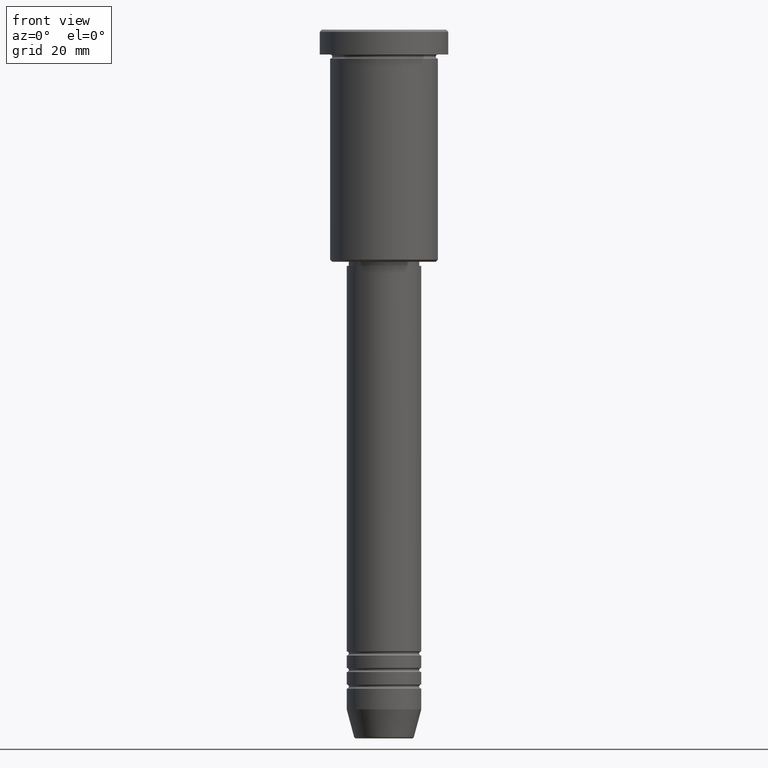
[diagram: clean part render]
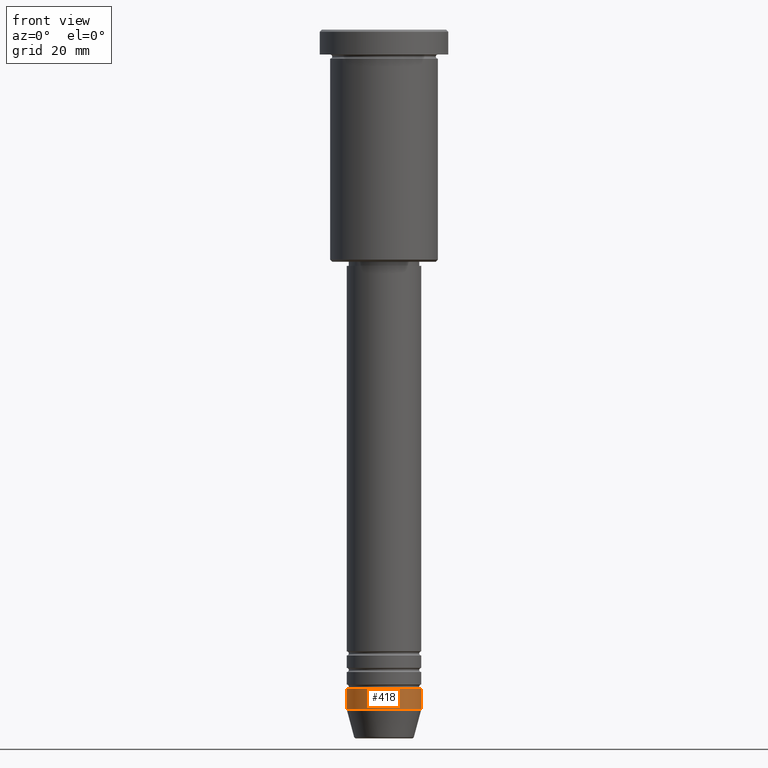
[diagram: same view with one face highlighted and labeled with its STEP entity id]
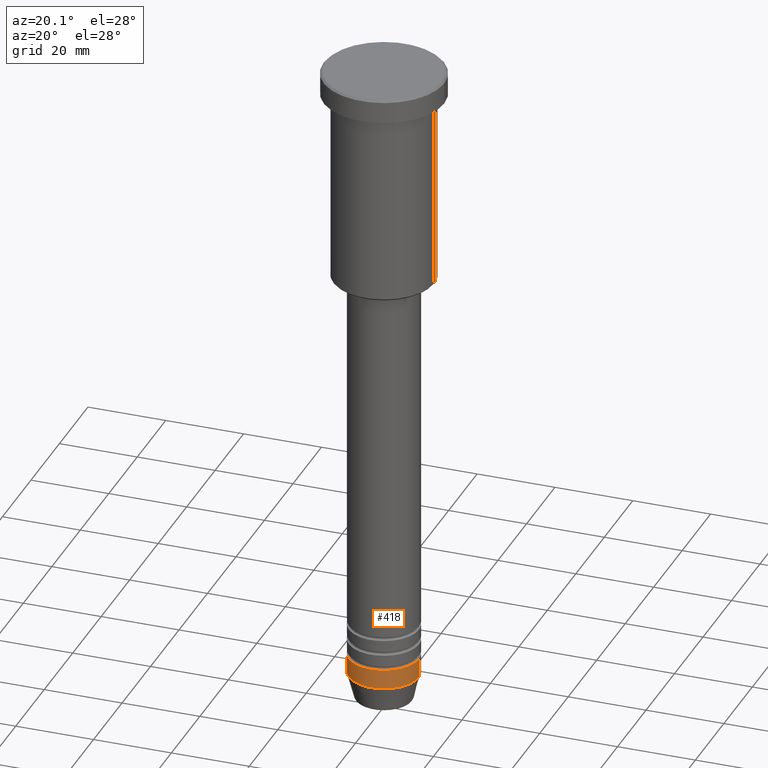
[diagram: same view with one face highlighted and labeled with its STEP entity id]
A machine part, front view. The second image highlights one B-rep face of the part: STEP entity #418.
A second angle (auxiliary view) of the same face is appended — the face is thin or edge-on in the first view.
In plain terms, the highlighted cylindrical surface (partial cylindrical patch) has radius 9 mm, axis along (-0, -0, 1).
Its self-contained STEP definition (entity closure, byte-faithful):
#11 = EDGE_LOOP ( 'NONE', ( #807, #1137, #924, #852 ) ) ;
#31 = DIRECTION ( 'NONE',  ( 1.000000000000000000, 0.000000000000000000, 0.000000000000000000 ) ) ;
#36 = CARTESIAN_POINT ( 'NONE',  ( 9.000000000000000000, 0.000000000000000000, -159.0000000000000000 ) ) ;
#44 = AXIS2_PLACEMENT_3D ( 'NONE', #874, #74, #775 ) ;
#74 = DIRECTION ( 'NONE',  ( -0.000000000000000000, -0.000000000000000000, 1.000000000000000000 ) ) ;
#165 = CARTESIAN_POINT ( 'NONE',  ( 0.000000000000000000, 0.000000000000000000, -164.0000000000000000 ) ) ;
#247 = CARTESIAN_POINT ( 'NONE',  ( -9.000000000000000000, 1.102182119232617714E-15, 0.000000000000000000 ) ) ;
#291 = LINE ( 'NONE', #756, #532 ) ;
#348 = DIRECTION ( 'NONE',  ( -0.000000000000000000, -0.000000000000000000, 1.000000000000000000 ) ) ;
#364 = CARTESIAN_POINT ( 'NONE',  ( -9.000000000000000000, 1.102182119232617714E-15, -159.0000000000000000 ) ) ;
#376 = AXIS2_PLACEMENT_3D ( 'NONE', #165, #348, #898 ) ;
#380 = EDGE_CURVE ( 'NONE', #816, #456, #291, .T. ) ;
#394 = VECTOR ( 'NONE', #522, 1000.000000000000000 ) ;
#418 = ADVANCED_FACE ( 'NONE', ( #1117 ), #842, .T. ) ;
#456 = VERTEX_POINT ( 'NONE', #36 ) ;
#471 = CIRCLE ( 'NONE', #376, 9.000000000000000000 ) ;
#522 = DIRECTION ( 'NONE',  ( -0.000000000000000000, -0.000000000000000000, 1.000000000000000000 ) ) ;
#532 = VECTOR ( 'NONE', #770, 1000.000000000000000 ) ;
#538 = EDGE_CURVE ( 'NONE', #941, #456, #782, .T. ) ;
#608 = LINE ( 'NONE', #247, #394 ) ;
#715 = VERTEX_POINT ( 'NONE', #1011 ) ;
#756 = CARTESIAN_POINT ( 'NONE',  ( 9.000000000000000000, 0.000000000000000000, 0.000000000000000000 ) ) ;
#770 = DIRECTION ( 'NONE',  ( -0.000000000000000000, -0.000000000000000000, 1.000000000000000000 ) ) ;
#775 = DIRECTION ( 'NONE',  ( 1.000000000000000000, 0.000000000000000000, 0.000000000000000000 ) ) ;
#782 = CIRCLE ( 'NONE', #44, 9.000000000000000000 ) ;
#807 = ORIENTED_EDGE ( 'NONE', *, *, #895, .F. ) ;
#816 = VERTEX_POINT ( 'NONE', #886 ) ;
#842 = CYLINDRICAL_SURFACE ( 'NONE', #1027, 9.000000000000000000 ) ;
#852 = ORIENTED_EDGE ( 'NONE', *, *, #538, .F. ) ;
#874 = CARTESIAN_POINT ( 'NONE',  ( 0.000000000000000000, 0.000000000000000000, -159.0000000000000000 ) ) ;
#886 = CARTESIAN_POINT ( 'NONE',  ( 9.000000000000000000, 0.000000000000000000, -164.0000000000000000 ) ) ;
#895 = EDGE_CURVE ( 'NONE', #715, #941, #608, .T. ) ;
#898 = DIRECTION ( 'NONE',  ( 1.000000000000000000, 0.000000000000000000, 0.000000000000000000 ) ) ;
#924 = ORIENTED_EDGE ( 'NONE', *, *, #380, .T. ) ;
#941 = VERTEX_POINT ( 'NONE', #364 ) ;
#943 = CARTESIAN_POINT ( 'NONE',  ( 0.000000000000000000, 0.000000000000000000, 0.000000000000000000 ) ) ;
#1004 = EDGE_CURVE ( 'NONE', #715, #816, #471, .T. ) ;
#1011 = CARTESIAN_POINT ( 'NONE',  ( -9.000000000000000000, 1.102182119232617714E-15, -164.0000000000000000 ) ) ;
#1027 = AXIS2_PLACEMENT_3D ( 'NONE', #943, #1032, #31 ) ;
#1032 = DIRECTION ( 'NONE',  ( -0.000000000000000000, -0.000000000000000000, 1.000000000000000000 ) ) ;
#1117 = FACE_OUTER_BOUND ( 'NONE', #11, .T. ) ;
#1137 = ORIENTED_EDGE ( 'NONE', *, *, #1004, .T. ) ;